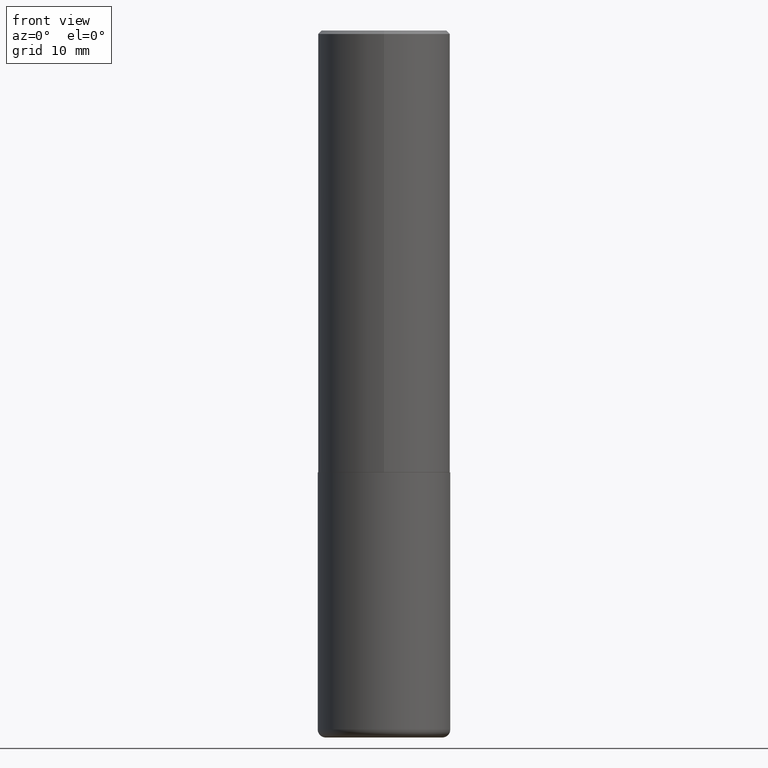
[diagram: clean part render]
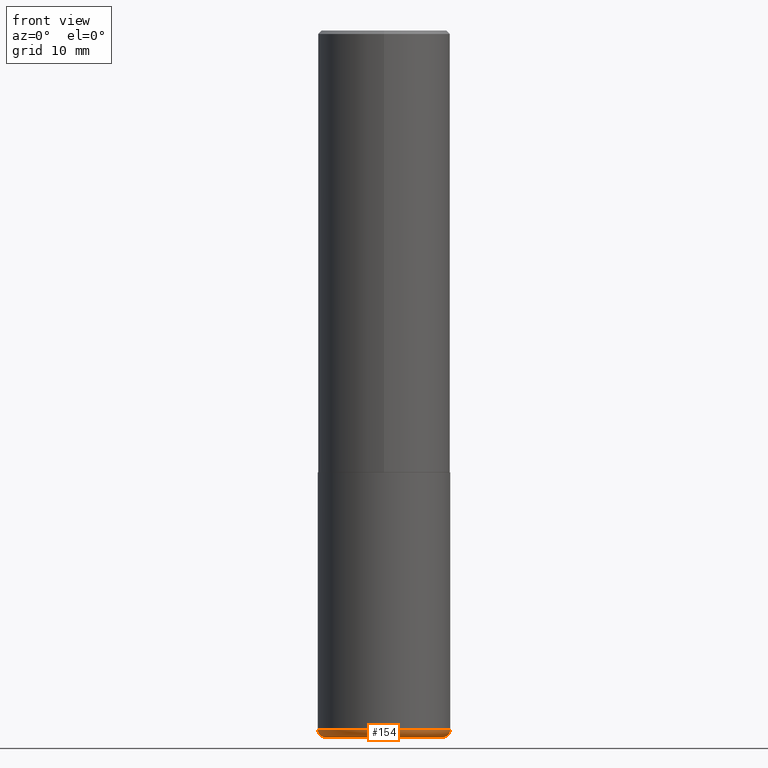
[diagram: same view with one face highlighted and labeled with its STEP entity id]
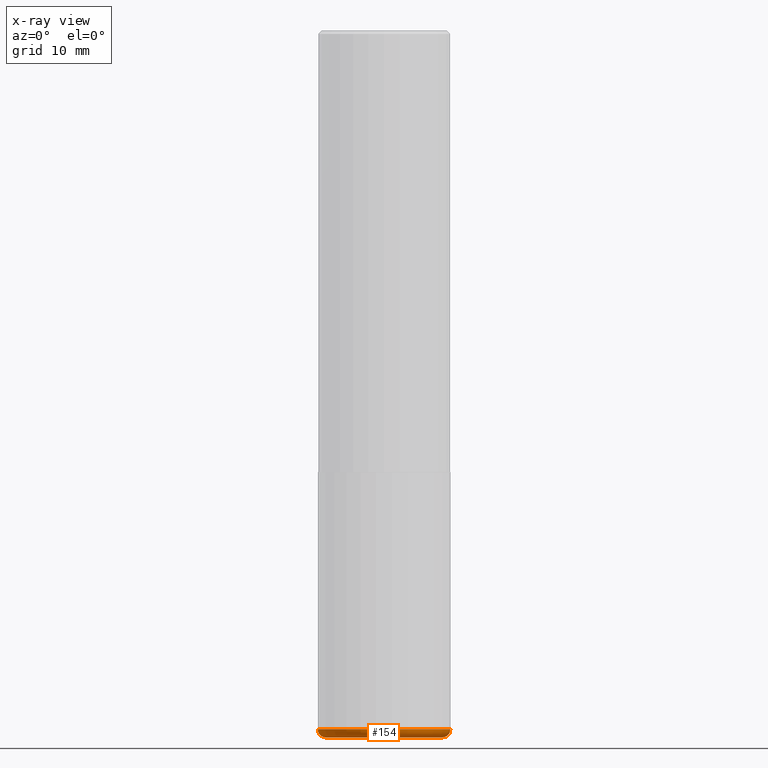
[diagram: x-ray of the same camera — body ghosted, the highlighted face saturated]
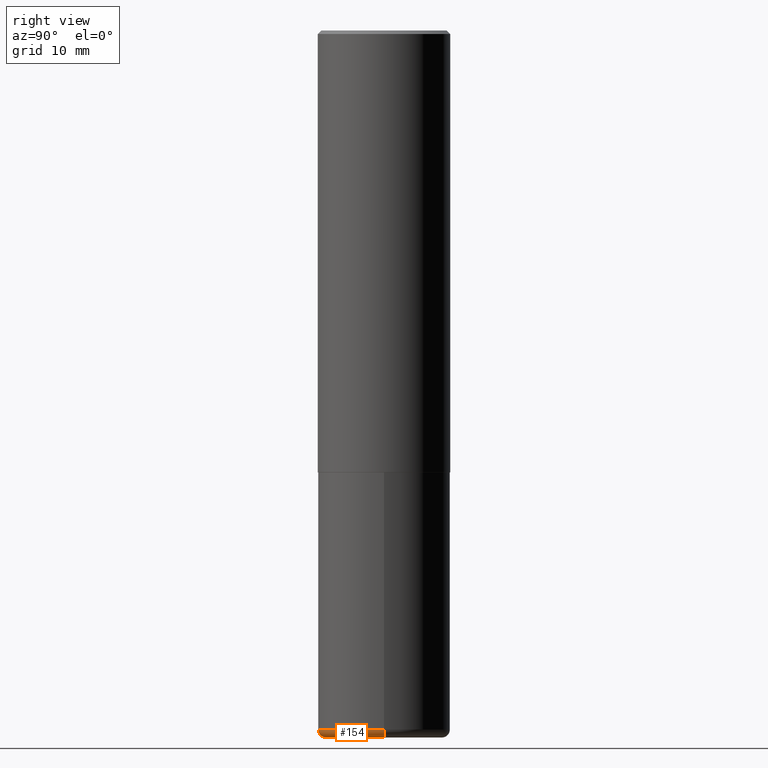
[diagram: same view with one face highlighted and labeled with its STEP entity id]
A machine part, front view. The second image highlights one B-rep face of the part: STEP entity #154.
The next image is the same camera in x-ray: the body ghosted, the highlighted face saturated — about 0% of this face is hidden behind the body in this view.
A second angle (right view) of the same face is appended — the face is thin or edge-on in the first view.
In plain terms, the highlighted toroidal blend (fillet) surface has major radius 8.382 mm and minor (blend) radius 1.143 mm.
Its self-contained STEP definition (entity closure, byte-faithful):
#2 = VERTEX_POINT ( 'NONE', #404 ) ;
#15 = DIRECTION ( 'NONE',  ( 1.000000000000000000, -6.982962677686257244E-15, 0.000000000000000000 ) ) ;
#21 = DIRECTION ( 'NONE',  ( -2.445468806185136597E-29, 3.491481338843145583E-15, 1.000000000000000000 ) ) ;
#34 = AXIS2_PLACEMENT_3D ( 'NONE', #311, #258, #347 ) ;
#43 = DIRECTION ( 'NONE',  ( 7.105427357601001859E-15, 1.000000000000000000, -3.491481338843145583E-15 ) ) ;
#49 = CARTESIAN_POINT ( 'NONE',  ( -0.3749999999999999445, -1.114427343602426500E-14, -3.954999999999999627 ) ) ;
#55 = AXIS2_PLACEMENT_3D ( 'NONE', #171, #43, #274 ) ;
#68 = VERTEX_POINT ( 'NONE', #211 ) ;
#83 = EDGE_CURVE ( 'NONE', #153, #228, #194, .T. ) ;
#84 = DIRECTION ( 'NONE',  ( 1.000000000000000000, -6.982962677686267499E-15, 0.000000000000000000 ) ) ;
#119 = ORIENTED_EDGE ( 'NONE', *, *, #83, .F. ) ;
#121 = TOROIDAL_SURFACE ( 'NONE', #34, 0.3300000000000000155, 0.04499999999999982486 ) ;
#127 = CIRCLE ( 'NONE', #335, 0.3750000000000000555 ) ;
#133 = ORIENTED_EDGE ( 'NONE', *, *, #403, .F. ) ;
#147 = DIRECTION ( 'NONE',  ( 1.000000000000000000, -6.982962677686266711E-15, 0.000000000000000000 ) ) ;
#152 = CIRCLE ( 'NONE', #395, 0.3300000000000000155 ) ;
#153 = VERTEX_POINT ( 'NONE', #155 ) ;
#154 = ADVANCED_FACE ( 'NONE', ( #216 ), #121, .T. ) ;
#155 = CARTESIAN_POINT ( 'NONE',  ( -0.3300000000000000155, -1.138270388169425732E-14, -3.999999999999999556 ) ) ;
#162 = CIRCLE ( 'NONE', #309, 0.04499999999999979017 ) ;
#171 = CARTESIAN_POINT ( 'NONE',  ( -0.3300000000000000155, -1.146401766711630958E-14, -3.954999999999999627 ) ) ;
#194 = CIRCLE ( 'NONE', #55, 0.04499999999999979017 ) ;
#202 = CARTESIAN_POINT ( 'NONE',  ( 9.781875224740545266E-29, -1.396592535537258075E-14, -3.999999999999999556 ) ) ;
#211 = CARTESIAN_POINT ( 'NONE',  ( 0.3300000000000000155, -1.627030303900904751E-14, -3.999999999999999556 ) ) ;
#216 = FACE_OUTER_BOUND ( 'NONE', #308, .T. ) ;
#225 = CARTESIAN_POINT ( 'NONE',  ( 9.671829128462214433E-29, -1.380880869512464070E-14, -3.954999999999999627 ) ) ;
#228 = VERTEX_POINT ( 'NONE', #49 ) ;
#229 = ORIENTED_EDGE ( 'NONE', *, *, #285, .T. ) ;
#235 = DIRECTION ( 'NONE',  ( -2.445468806185136597E-29, 3.491481338843145583E-15, 1.000000000000000000 ) ) ;
#258 = DIRECTION ( 'NONE',  ( -2.445468806185136597E-29, 3.491481338843145583E-15, 1.000000000000000000 ) ) ;
#274 = DIRECTION ( 'NONE',  ( -1.000000000000000000, 7.105427357601023947E-15, 0.000000000000000000 ) ) ;
#285 = EDGE_CURVE ( 'NONE', #153, #68, #152, .T. ) ;
#308 = EDGE_LOOP ( 'NONE', ( #119, #229, #330, #133 ) ) ;
#309 = AXIS2_PLACEMENT_3D ( 'NONE', #391, #359, #15 ) ;
#311 = CARTESIAN_POINT ( 'NONE',  ( 9.671829128462214433E-29, -1.380880869512464070E-14, -3.954999999999999627 ) ) ;
#330 = ORIENTED_EDGE ( 'NONE', *, *, #357, .T. ) ;
#335 = AXIS2_PLACEMENT_3D ( 'NONE', #225, #21, #147 ) ;
#347 = DIRECTION ( 'NONE',  ( 1.000000000000000000, -6.982962677686265922E-15, 4.883557194083112901E-29 ) ) ;
#357 = EDGE_CURVE ( 'NONE', #68, #2, #162, .T. ) ;
#359 = DIRECTION ( 'NONE',  ( -6.982962677686266711E-15, -1.000000000000000000, 3.491481338843145583E-15 ) ) ;
#391 = CARTESIAN_POINT ( 'NONE',  ( 0.3300000000000000155, -1.611318637876110745E-14, -3.954999999999999627 ) ) ;
#395 = AXIS2_PLACEMENT_3D ( 'NONE', #202, #235, #84 ) ;
#403 = EDGE_CURVE ( 'NONE', #228, #2, #127, .T. ) ;
#404 = CARTESIAN_POINT ( 'NONE',  ( 0.3749999999999999445, -1.642741969925699071E-14, -3.954999999999999627 ) ) ;